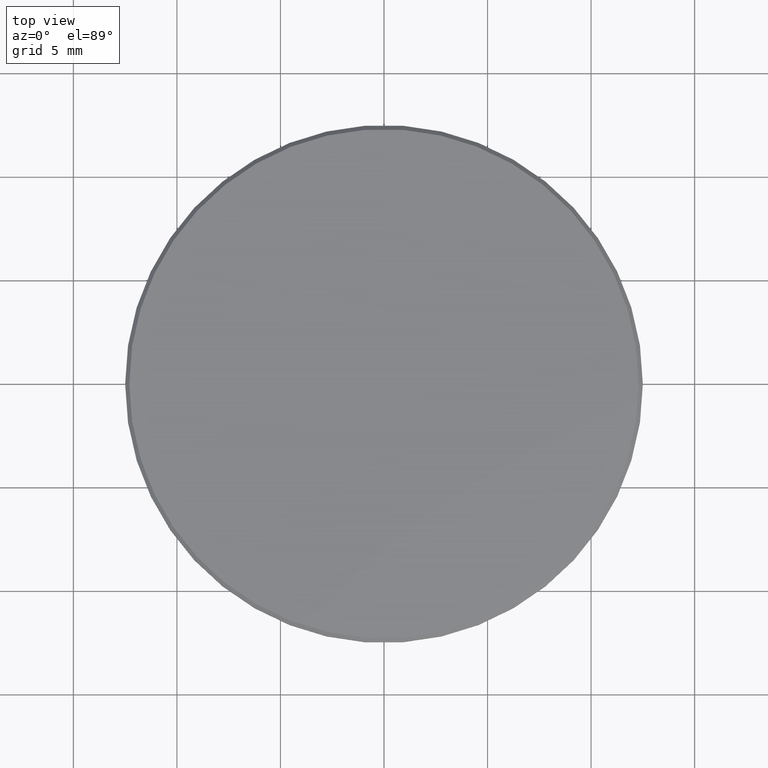
[diagram: clean part render]
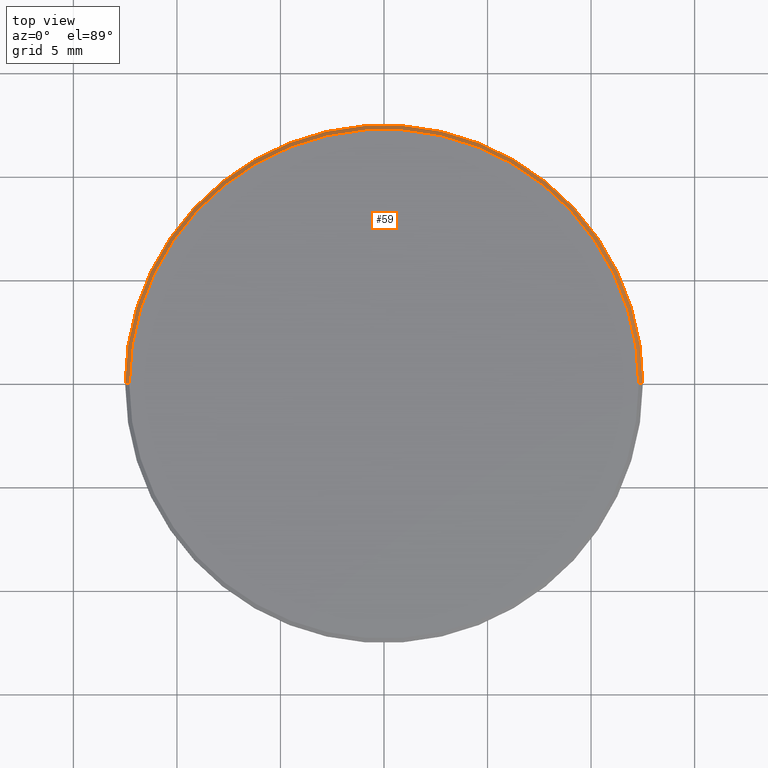
[diagram: same view with one face highlighted and labeled with its STEP entity id]
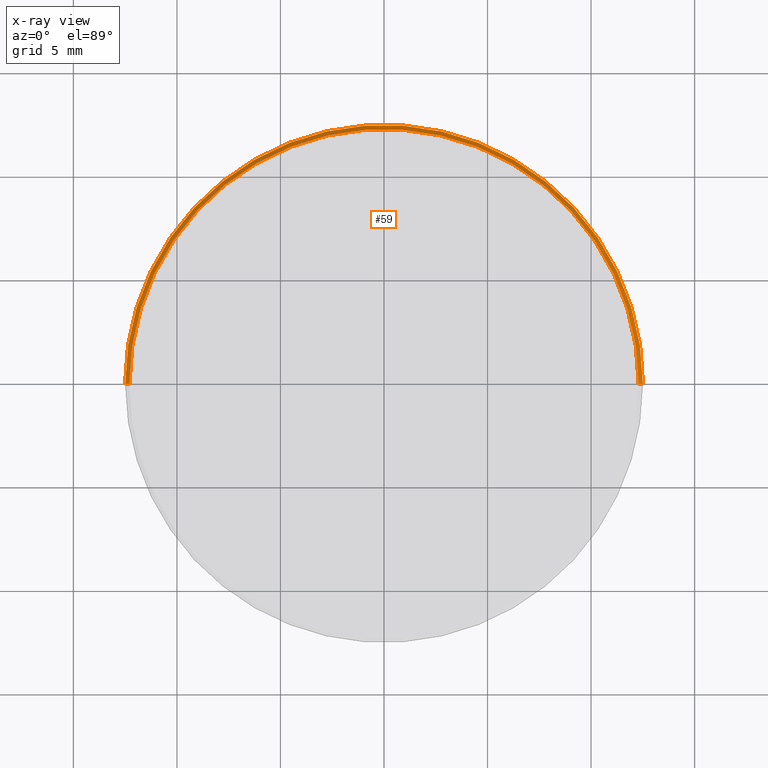
[diagram: x-ray of the same camera — body ghosted, the highlighted face saturated]
A machine part, top view. The second image highlights one B-rep face of the part: STEP entity #59.
The next image is the same camera in x-ray: the body ghosted, the highlighted face saturated — about 0% of this face is hidden behind the body in this view.
In plain terms, the highlighted conical surface has half-angle 45 deg.
Its self-contained STEP definition (entity closure, byte-faithful):
#3 = CARTESIAN_POINT ( 'NONE',  ( 12.50000000000000000, 1.530808498934191521E-15, 0.8000000000000029310 ) ) ;
#6 = ORIENTED_EDGE ( 'NONE', *, *, #143, .T. ) ;
#15 = VECTOR ( 'NONE', #240, 1000.000000000000000 ) ;
#29 = CARTESIAN_POINT ( 'NONE',  ( 12.29999999999999893, 1.518562030942717967E-15, 1.000000000000000000 ) ) ;
#34 = ORIENTED_EDGE ( 'NONE', *, *, #141, .F. ) ;
#36 = AXIS2_PLACEMENT_3D ( 'NONE', #129, #92, #111 ) ;
#37 = LINE ( 'NONE', #215, #146 ) ;
#44 = CIRCLE ( 'NONE', #36, 12.29999999999999893 ) ;
#49 = VERTEX_POINT ( 'NONE', #29 ) ;
#54 = AXIS2_PLACEMENT_3D ( 'NONE', #131, #221, #75 ) ;
#58 = CARTESIAN_POINT ( 'NONE',  ( -12.50000000000000000, 0.000000000000000000, 0.8000000000000029310 ) ) ;
#59 = ADVANCED_FACE ( 'NONE', ( #213 ), #147, .T. ) ;
#75 = DIRECTION ( 'NONE',  ( 1.000000000000000000, 0.000000000000000000, 0.000000000000000000 ) ) ;
#92 = DIRECTION ( 'NONE',  ( 0.000000000000000000, 0.000000000000000000, 1.000000000000000000 ) ) ;
#94 = CARTESIAN_POINT ( 'NONE',  ( 12.29999999999999893, 1.506315562951244216E-15, 1.000000000000000000 ) ) ;
#99 = VERTEX_POINT ( 'NONE', #124 ) ;
#101 = CARTESIAN_POINT ( 'NONE',  ( 0.000000000000000000, 0.000000000000000000, 1.000000000000000000 ) ) ;
#104 = ORIENTED_EDGE ( 'NONE', *, *, #198, .F. ) ;
#107 = DIRECTION ( 'NONE',  ( -0.7071067811865566766, 0.000000000000000000, -0.7071067811865383579 ) ) ;
#111 = DIRECTION ( 'NONE',  ( 1.000000000000000000, 0.000000000000000000, 0.000000000000000000 ) ) ;
#124 = CARTESIAN_POINT ( 'NONE',  ( -12.29999999999999893, 0.000000000000000000, 1.000000000000000000 ) ) ;
#129 = CARTESIAN_POINT ( 'NONE',  ( 0.000000000000000000, 0.000000000000000000, 1.000000000000000000 ) ) ;
#131 = CARTESIAN_POINT ( 'NONE',  ( 0.000000000000000000, 0.000000000000000000, 0.8000000000000029310 ) ) ;
#137 = AXIS2_PLACEMENT_3D ( 'NONE', #101, #170, #214 ) ;
#141 = EDGE_CURVE ( 'NONE', #99, #174, #37, .T. ) ;
#143 = EDGE_CURVE ( 'NONE', #49, #231, #177, .T. ) ;
#146 = VECTOR ( 'NONE', #107, 1000.000000000000000 ) ;
#147 = CONICAL_SURFACE ( 'NONE', #137, 12.29999999999999893, 0.7853981633974612686 ) ;
#151 = CIRCLE ( 'NONE', #54, 12.50000000000000000 ) ;
#155 = ORIENTED_EDGE ( 'NONE', *, *, #164, .F. ) ;
#164 = EDGE_CURVE ( 'NONE', #49, #99, #44, .T. ) ;
#170 = DIRECTION ( 'NONE',  ( 0.000000000000000000, 0.000000000000000000, -1.000000000000000000 ) ) ;
#174 = VERTEX_POINT ( 'NONE', #58 ) ;
#177 = LINE ( 'NONE', #94, #15 ) ;
#198 = EDGE_CURVE ( 'NONE', #174, #231, #151, .T. ) ;
#213 = FACE_OUTER_BOUND ( 'NONE', #235, .T. ) ;
#214 = DIRECTION ( 'NONE',  ( -1.000000000000000000, 0.000000000000000000, 0.000000000000000000 ) ) ;
#215 = CARTESIAN_POINT ( 'NONE',  ( -12.29999999999999893, 0.000000000000000000, 1.000000000000000000 ) ) ;
#221 = DIRECTION ( 'NONE',  ( 0.000000000000000000, 0.000000000000000000, -1.000000000000000000 ) ) ;
#231 = VERTEX_POINT ( 'NONE', #3 ) ;
#235 = EDGE_LOOP ( 'NONE', ( #155, #6, #104, #34 ) ) ;
#240 = DIRECTION ( 'NONE',  ( 0.7071067811865566766, 8.659560562355045024E-17, -0.7071067811865383579 ) ) ;